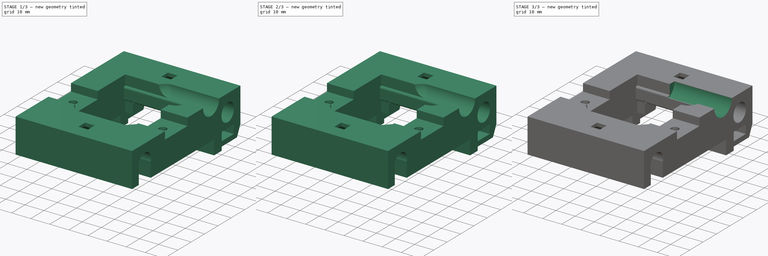
[diagram: build sequence overview — one tinted view per stage of 3, left to right]
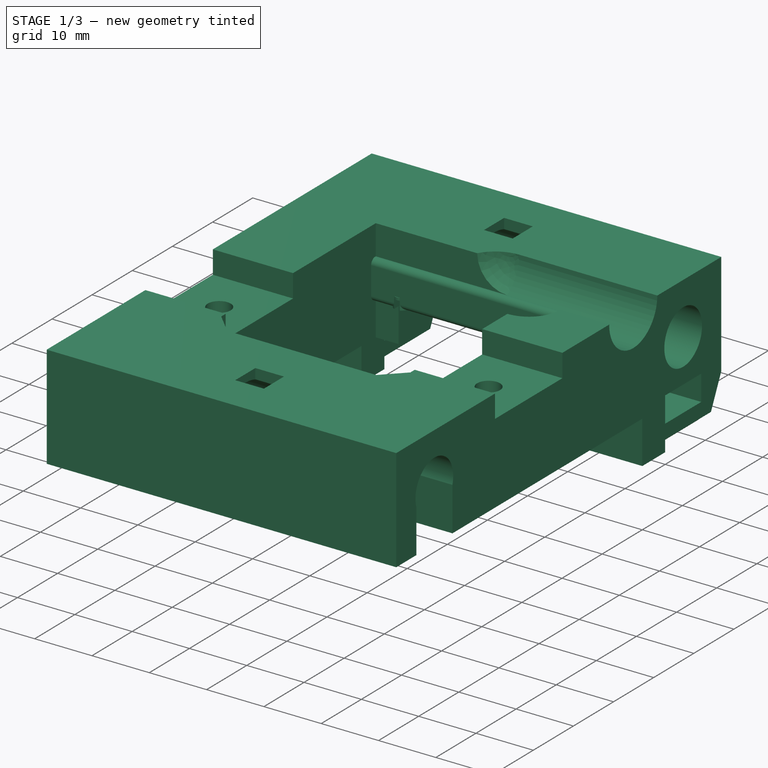
[diagram: stage 1 of 3 — iso view after this stage's code; geometry added in this stage tinted green]
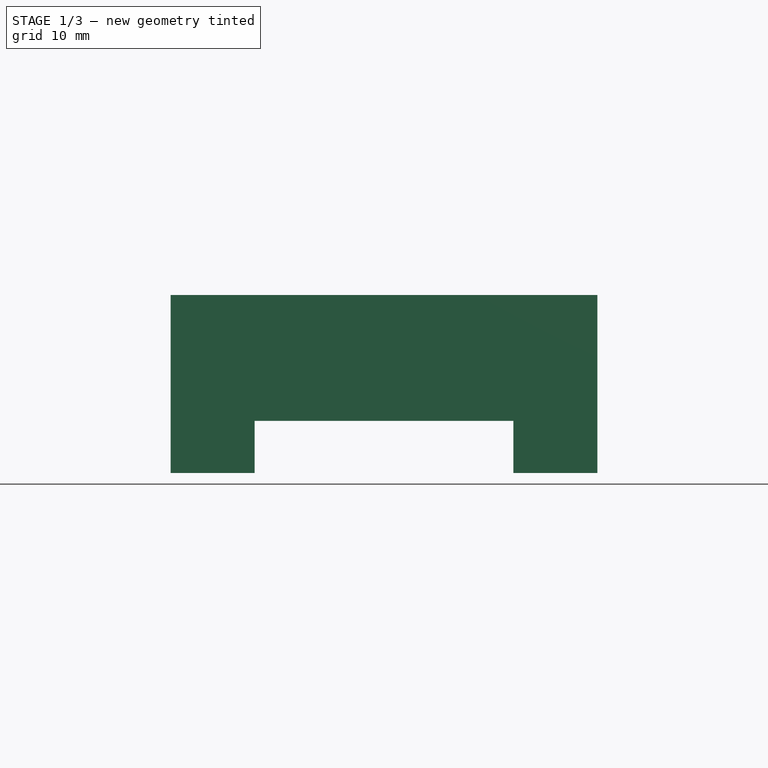
[diagram: stage 1 of 3 — front view after this stage's code; geometry added in this stage tinted green]
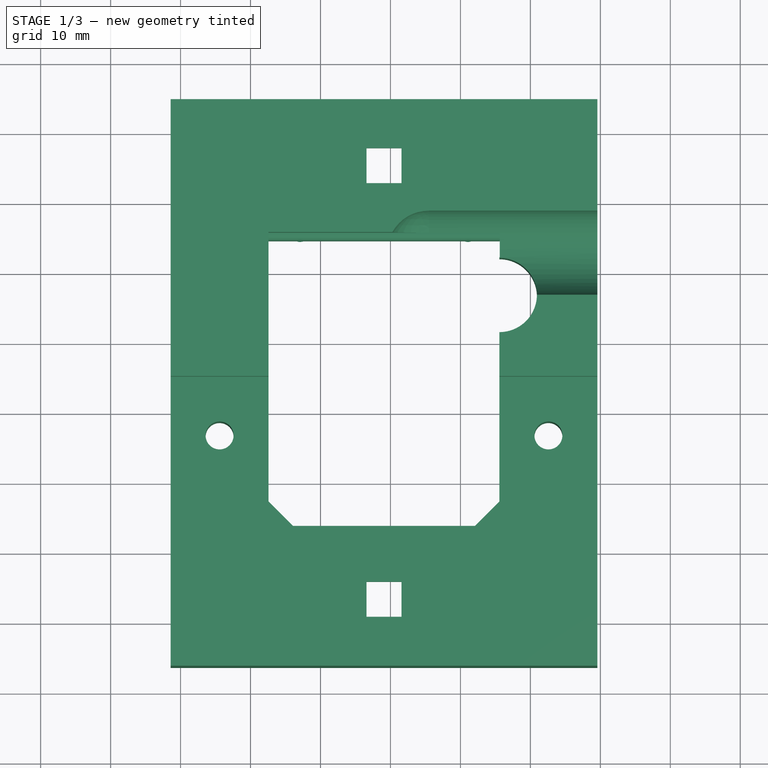
[diagram: stage 1 of 3 — top view after this stage's code; geometry added in this stage tinted green]
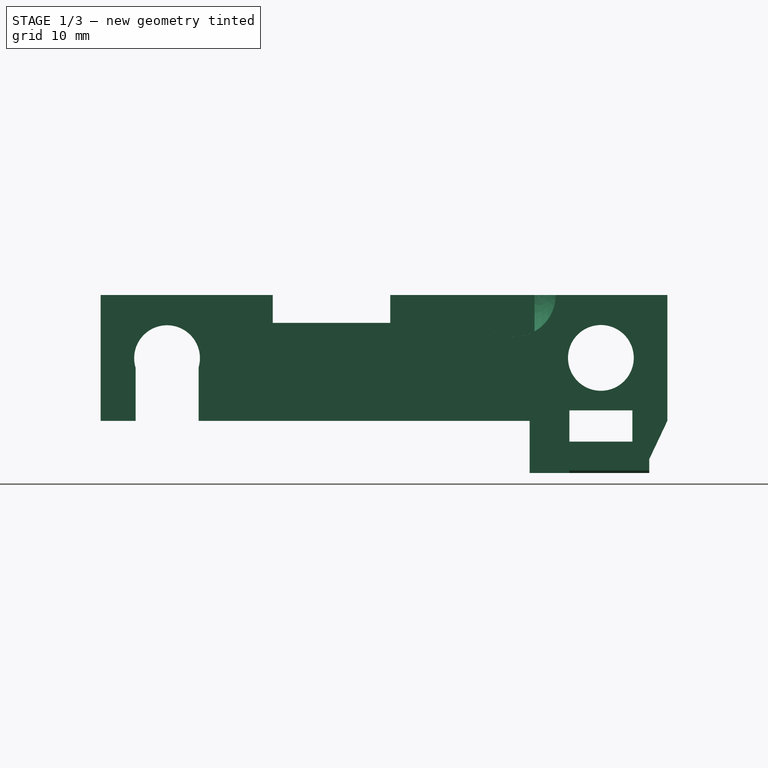
[diagram: stage 1 of 3 — right view after this stage's code; geometry added in this stage tinted green]
FCSTD DOCUMENT  (FreeCAD 0.16R6668 (Git))
Label: carroUniversal
License: All rights reserved
LicenseURL: http://en.wikipedia.org/wiki/All_rights_reserved
objects: Sketcher::SketchObject×5, PartDesign::Pocket×5, Part::Feature×2
note: 17 computed .brp shape members not serialized (recipe doc carries the construction recipe); baked Part::Feature solids carry a one-line shape summary decoded from their .brp

FEATURE [Part::Feature] Part__Feature  label="carro 22.2.4"
  shape: bbox 61.02 x 81.02 x 25.48 mm, 445 faces (baked)
FEATURE [Sketcher::SketchObject] Sketch
  Placement = pos=(-0.42276,0,0) rot=(0.57735,0.57735,0.57735;2.0944rad)
  Support = -> Part__Feature [Face168]
  sketch-geometry (4):
    g0: LineSegment StartX=-91.6675 StartY=259 StartZ=0 EndX=0.59101 EndY=259 EndZ=0
    g1: LineSegment StartX=0.59101 StartY=259 StartZ=0 EndX=0.59101 EndY=220 EndZ=0
    g2: LineSegment StartX=0.59101 StartY=220 StartZ=0 EndX=-91.6675 EndY=220 EndZ=0
    g3: LineSegment StartX=-91.6675 StartY=220 StartZ=0 EndX=-91.6675 EndY=259 EndZ=0
  constraints (8):
    c: Coincident(g0,g1)
    c: Coincident(g1,g2)
    c: Coincident(g2,g3)
    c: Coincident(g3,g0)
    c: Horizontal(g0)
    c: Horizontal(g2)
    c: Vertical(g1)
    c: Vertical(g3)
FEATURE [PartDesign::Pocket] Pocket
  Length = 0.001
  Sketch = -> Sketch
  Type = 0
FEATURE [Sketcher::SketchObject] Sketch001
  Placement = pos=(-61.4234,0,0) rot=(0.57735,-0.57735,-0.57735;2.0944rad)
  Support = -> Pocket [Face140]
  sketch-geometry (4):
    g0: LineSegment StartX=-7.56946 StartY=262 StartZ=0 EndX=98 EndY=262 EndZ=0
    g1: LineSegment StartX=98 StartY=262 StartZ=0 EndX=98 EndY=216.301 EndZ=0
    g2: LineSegment StartX=98 StartY=216.301 StartZ=0 EndX=-7.56946 EndY=216.301 EndZ=0
    g3: LineSegment StartX=-7.56946 StartY=216.301 StartZ=0 EndX=-7.56946 EndY=262 EndZ=0
  constraints (8):
    c: Coincident(g0,g1)
    c: Coincident(g1,g2)
    c: Coincident(g2,g3)
    c: Coincident(g3,g0)
    c: Horizontal(g0)
    c: Horizontal(g2)
    c: Vertical(g1)
    c: Vertical(g3)
FEATURE [PartDesign::Pocket] Pocket001
  Length = 0.001
  Sketch = -> Sketch001
  Type = 0
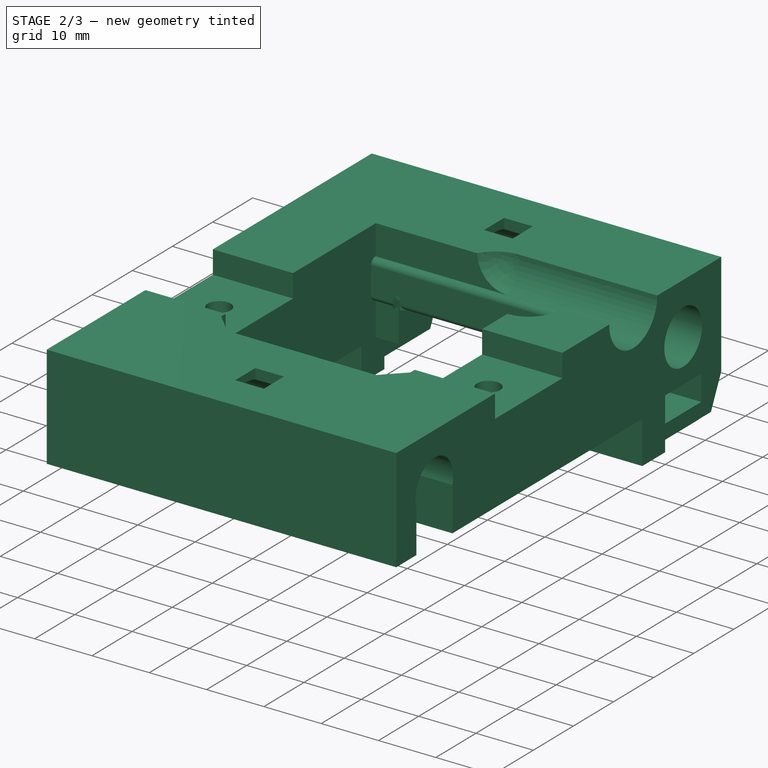
[diagram: stage 2 of 3 — iso view after this stage's code; geometry added in this stage tinted green]
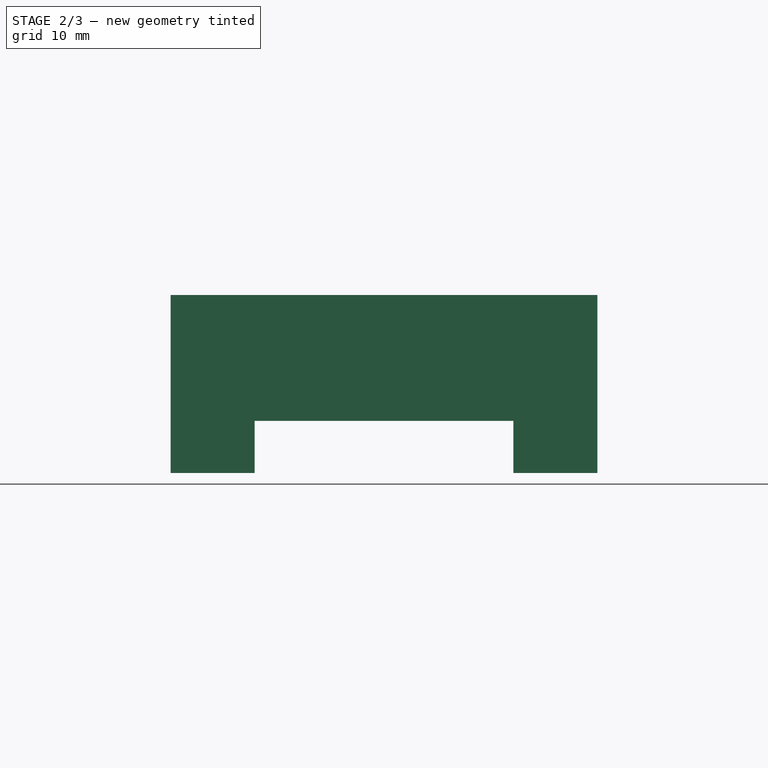
[diagram: stage 2 of 3 — front view after this stage's code; geometry added in this stage tinted green]
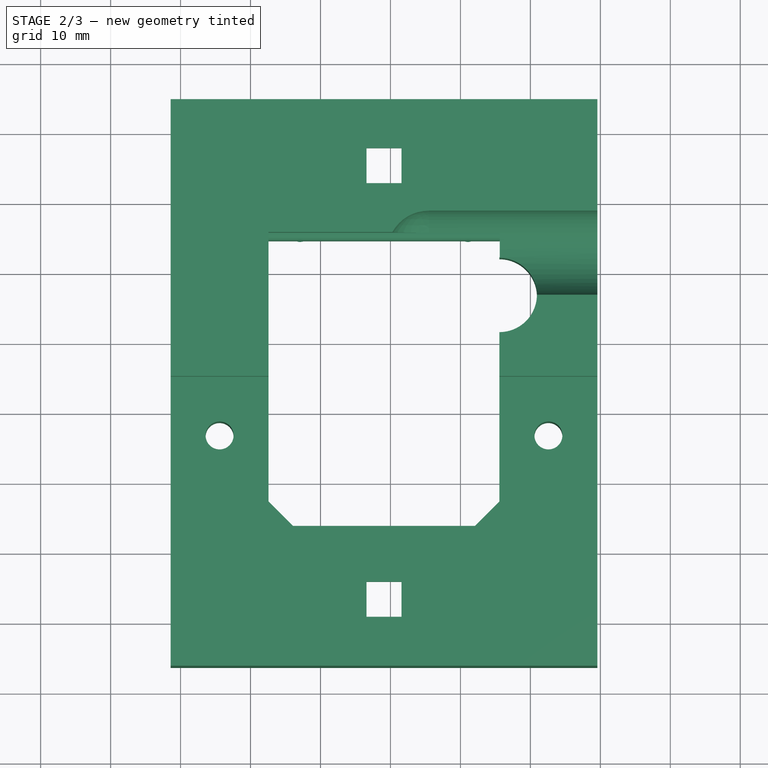
[diagram: stage 2 of 3 — top view after this stage's code; geometry added in this stage tinted green]
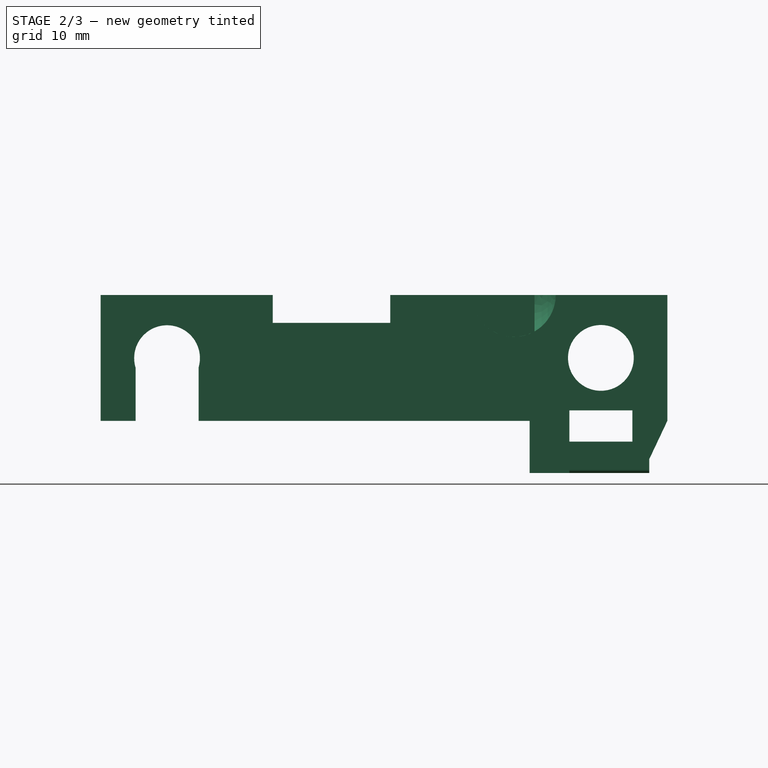
[diagram: stage 2 of 3 — right view after this stage's code; geometry added in this stage tinted green]
FEATURE [Sketcher::SketchObject] Sketch002
  Placement = pos=(0,0.032895,234.603) rot=(1,0,0;3.14145rad)
  Support = -> Pocket001 [Face101]
  sketch-geometry (4):
    g0: LineSegment StartX=-66.719 StartY=90 StartZ=0 EndX=4.62828 EndY=90 EndZ=0
    g1: LineSegment StartX=4.62828 StartY=90 StartZ=0 EndX=4.62828 EndY=79.3059 EndZ=0
    g2: LineSegment StartX=4.62828 StartY=79.3059 StartZ=0 EndX=-66.719 EndY=79.3059 EndZ=0
    g3: LineSegment StartX=-66.719 StartY=79.3059 StartZ=0 EndX=-66.719 EndY=90 EndZ=0
  constraints (8):
    c: Coincident(g0,g1)
    c: Coincident(g1,g2)
    c: Coincident(g2,g3)
    c: Coincident(g3,g0)
    c: Horizontal(g0)
    c: Horizontal(g2)
    c: Vertical(g1)
    c: Vertical(g3)
FEATURE [PartDesign::Pocket] Pocket002
  Length = 0.001
  Sketch = -> Sketch002
  Type = 0
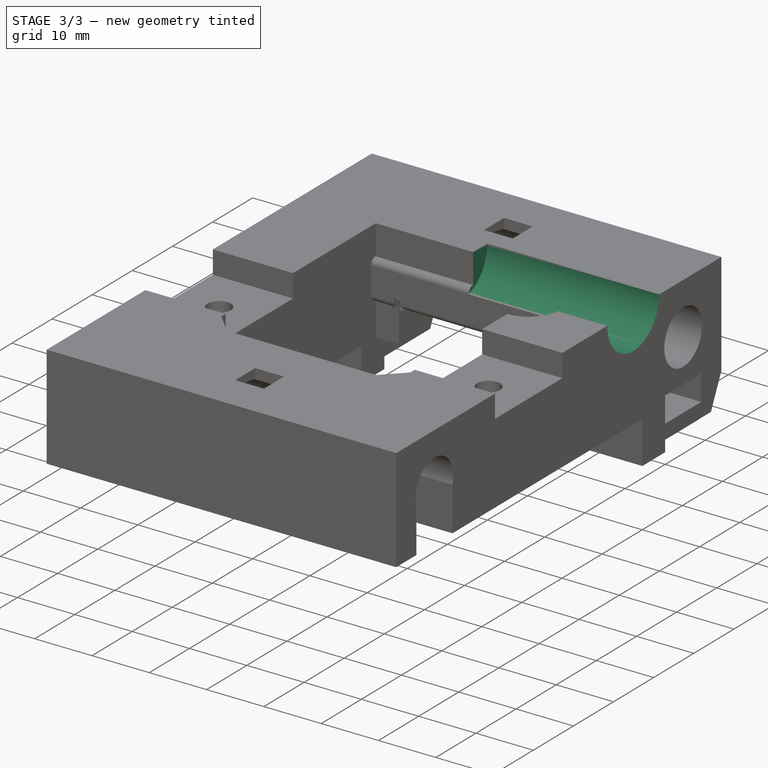
[diagram: stage 3 of 3 — iso view after this stage's code; geometry added in this stage tinted green]
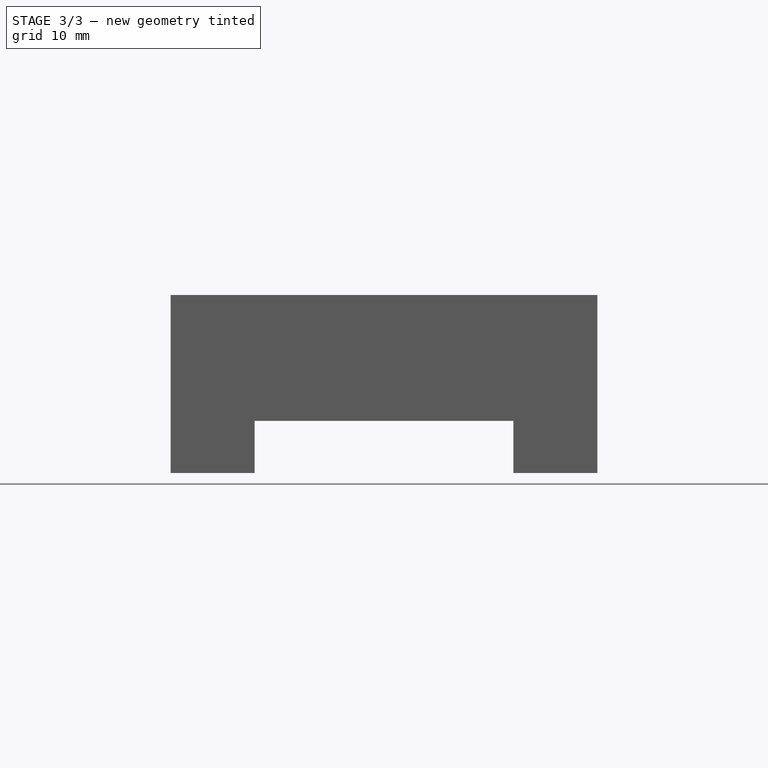
[diagram: stage 3 of 3 — front view after this stage's code; geometry added in this stage tinted green]
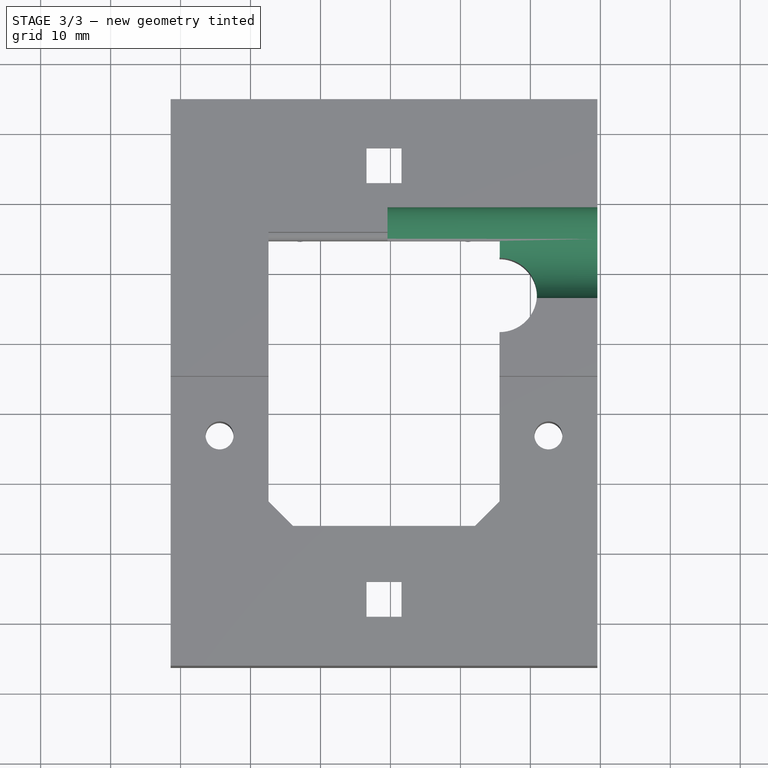
[diagram: stage 3 of 3 — top view after this stage's code; geometry added in this stage tinted green]
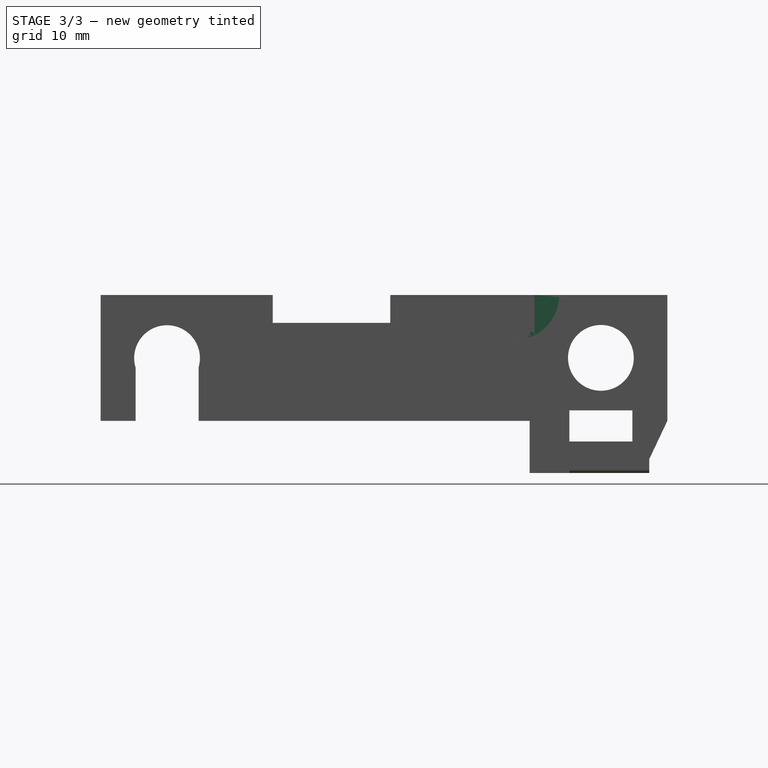
[diagram: stage 3 of 3 — right view after this stage's code; geometry added in this stage tinted green]
FEATURE [Sketcher::SketchObject] Sketch004
  ExternalGeometry = -> [Pocket002]
  Placement = pos=(-0.42376,0,0) rot=(0.57735,0.57735,0.57735;2.0944rad)
  Support = -> Pocket002 [Face55]
  sketch-geometry (2):
    g0: Circle [constr] CenterX=-27.3502 CenterY=252.625 CenterZ=0 NormalX=0 NormalY=0 NormalZ=1 Radius=6.00001
    g1: Circle CenterX=-27.3502 CenterY=252.625 CenterZ=0 NormalX=0 NormalY=0 NormalZ=1 Radius=6.48469
  constraints (5):
    c: PointOnObject(g-4,g0)
    c: PointOnObject(g-5,g0)
    c: PointOnObject(g-6,g0)
    c: Coincident(g1,g0)
    c: PointOnObject(g-7,g1)
FEATURE [PartDesign::Pocket] Pocket003
  Length = 30
  Sketch = -> Sketch004
  Type = 0
FEATURE [Sketcher::SketchObject] Sketch005
  Placement = pos=(0,0,252.615) rot=(0,0,1;0rad)
  Support = -> Pocket003 [Face102]
  sketch-geometry (4):
    g0: LineSegment StartX=14.2911 StartY=-91.5532 StartZ=0 EndX=-85 EndY=-91.5532 EndZ=0
    g1: LineSegment StartX=-85 StartY=-91.5532 StartZ=0 EndX=-85 EndY=5 EndZ=0
    g2: LineSegment StartX=-85 StartY=5 StartZ=0 EndX=14.2911 EndY=5 EndZ=0
    g3: LineSegment StartX=14.2911 StartY=5 StartZ=0 EndX=14.2911 EndY=-91.5532 EndZ=0
  constraints (8):
    c: Coincident(g0,g1)
    c: Coincident(g1,g2)
    c: Coincident(g2,g3)
    c: Coincident(g3,g0)
    c: Horizontal(g0)
    c: Horizontal(g2)
    c: Vertical(g1)
    c: Vertical(g3)
FEATURE [PartDesign::Pocket] Pocket004
  Length = 0.01
  Sketch = -> Sketch005
  Type = 0
FEATURE [Part::Feature] Shell
  shape: bbox 61.02 x 81.02 x 25.47 mm, 301 faces, 0 solids (baked)
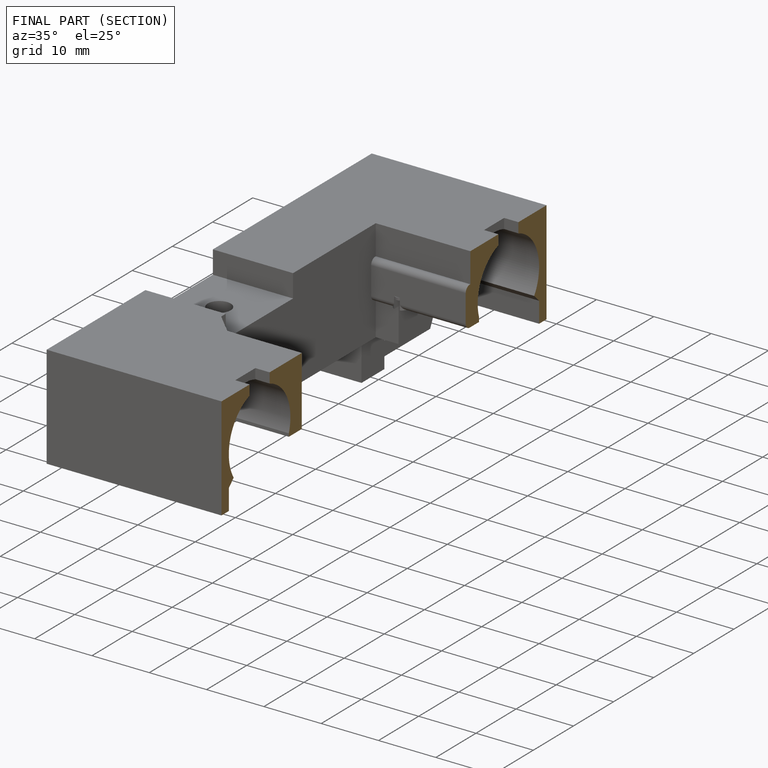
[diagram: finished part — half-section view (interior)]
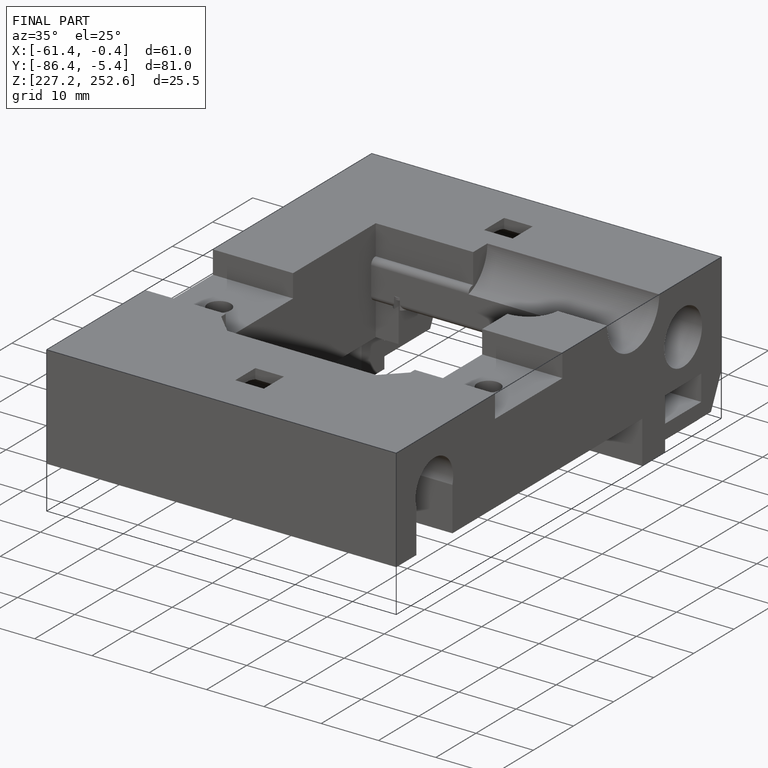
[diagram: finished part — iso view with bounding-box wireframe]
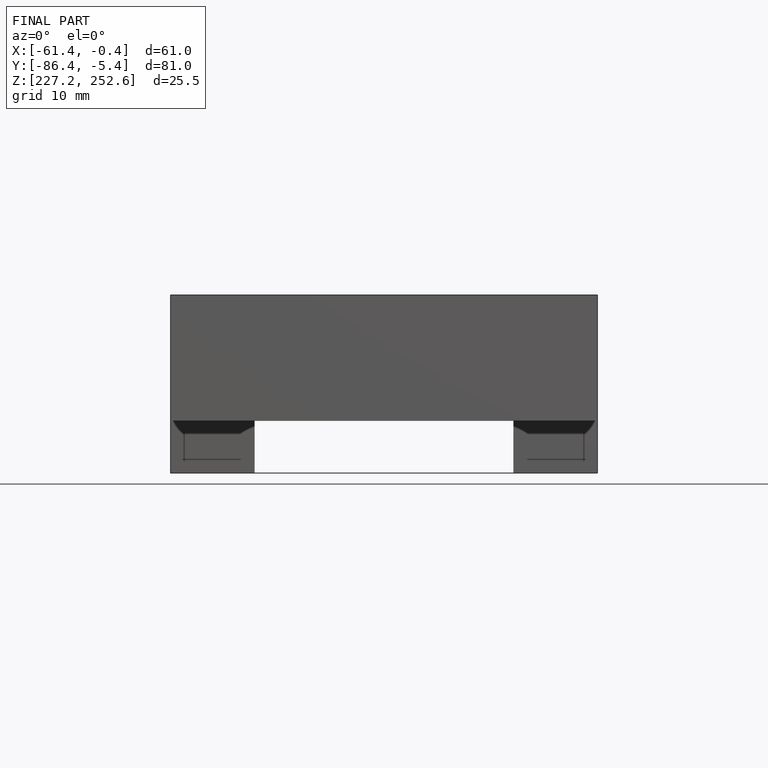
[diagram: finished part — front view with bounding-box wireframe]
